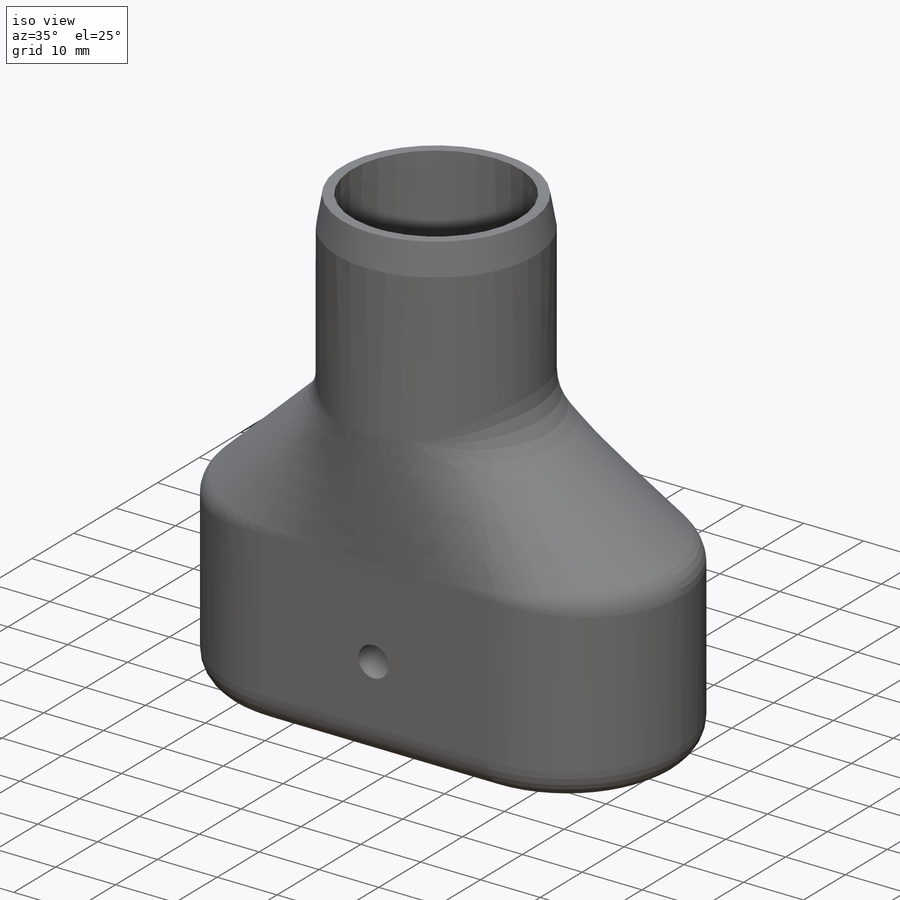
[diagram: iso view]
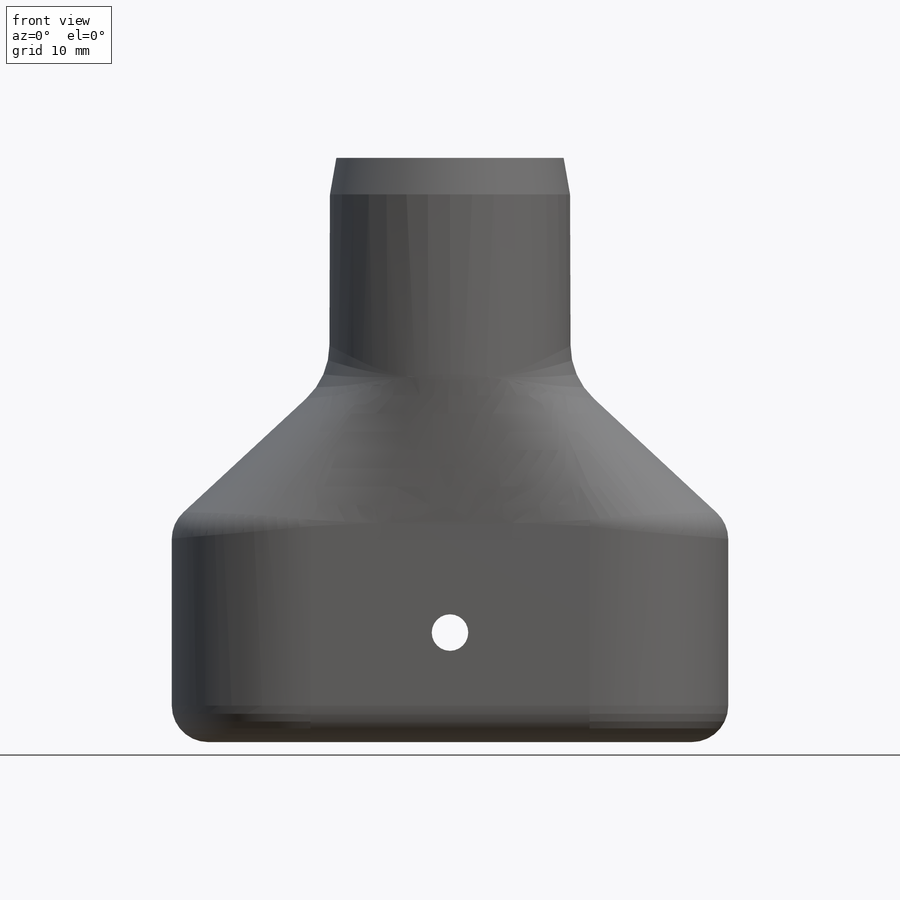
[diagram: front view]
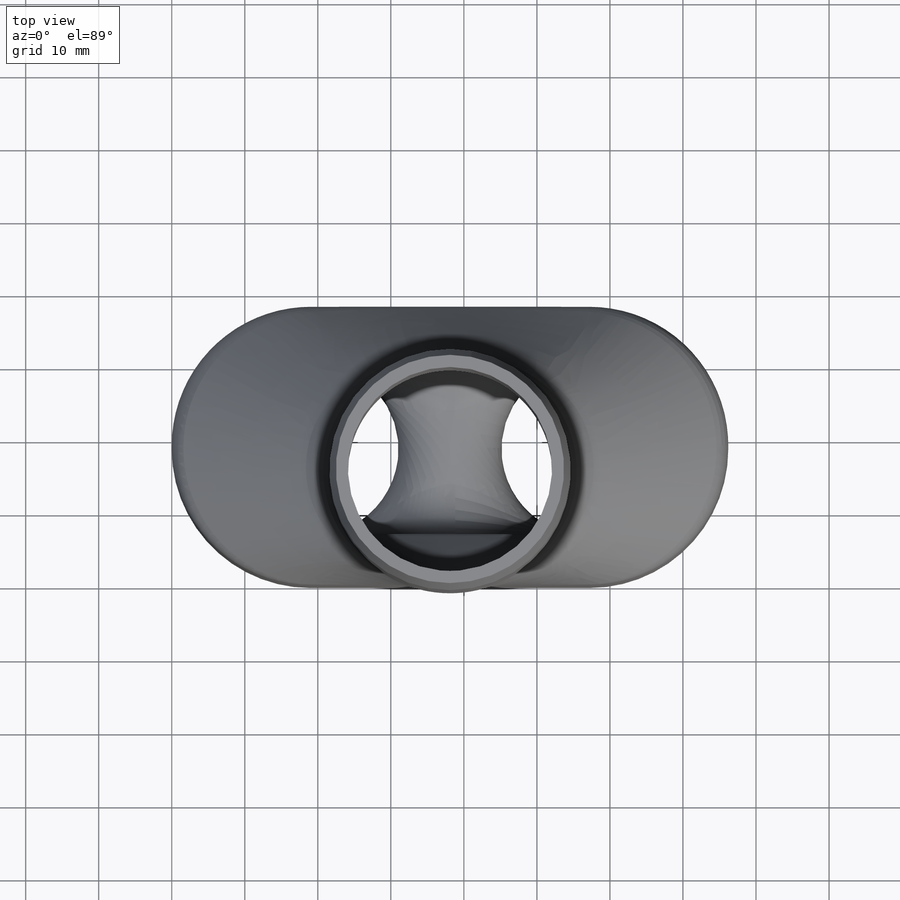
[diagram: top view]
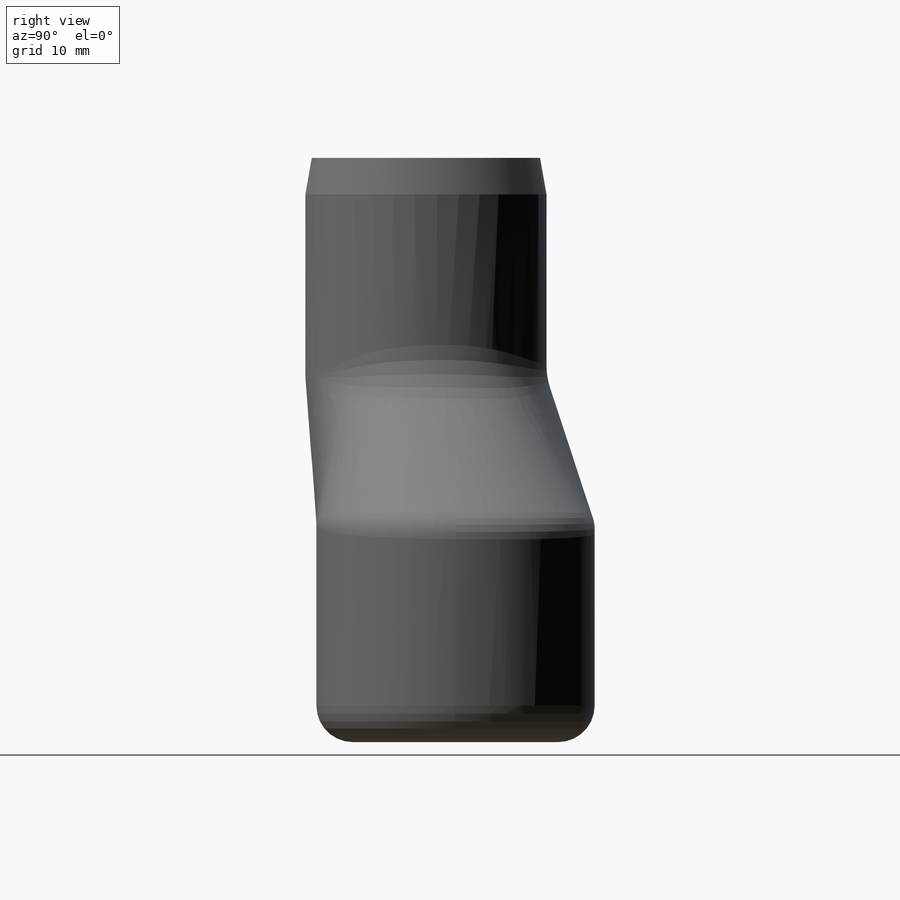
[diagram: right view]
SOLIDWORKS PART (.sldprt)
format: sldprt  version: not decoded by parser v0  size: 596,992 bytes
history: native  units: mm
features: sketch x8, fillet x5, extrude x2, cut_extrude x2, chamfer x2, material x1 (+11 scaffold rows collapsed)
feature tree (31):
  scaffold x11  (default folders/planes/origin — collapsed)
  material  "Material <not specified>"
  sketch  "Sketch1"  dims[c1.D3=19.0mm c1.D4=19.0mm c1.D5=19.0mm c2.D3=19.0mm c2.D1=76.2mm c2.D2=38.1mm]
  extrude  "Boss-Extrude1"  Depth=30mm
  sketch  "Sketch2"  dims[D1=12.7mm]
  extrude  "Boss-Extrude2"  Depth=30mm
  sketch  "Sketch3"  dims[D1=~1.339996mm]
  cut_extrude  "Cut-Extrude1"  [1 undecoded]
  sketch  "Sketch4"
  cut_extrude  "Cut-Extrude2"  Depth=10mm
  sketch  "Sketch5"
  sketch  "Sketch6"  dims[D1=19.0mm]
  sketch  "Sketch7"
  sketch  "Sketch4<2>"
  fillet  "Fillet1"  Radius=10mm
  fillet  "Fillet2"  Radius=5mm
  chamfer  "Chamfer1"  Distance=5mm Angle=10deg
  fillet  "Fillet3"  Radius=7mm
  fillet  "Fillet4"  Radius=7mm
  fillet  "Fillet5"  Radius=7mm
  chamfer  "Chamfer2"  Distance=1mm Angle=45deg
decode coverage: 14 of 19 modeling features carry decoded parameters
note: ~ marks probable driven/reference dimensions
note: 1 parameter value undecoded
note: suppression state not decoded; provenance and decode notes live in map.json
